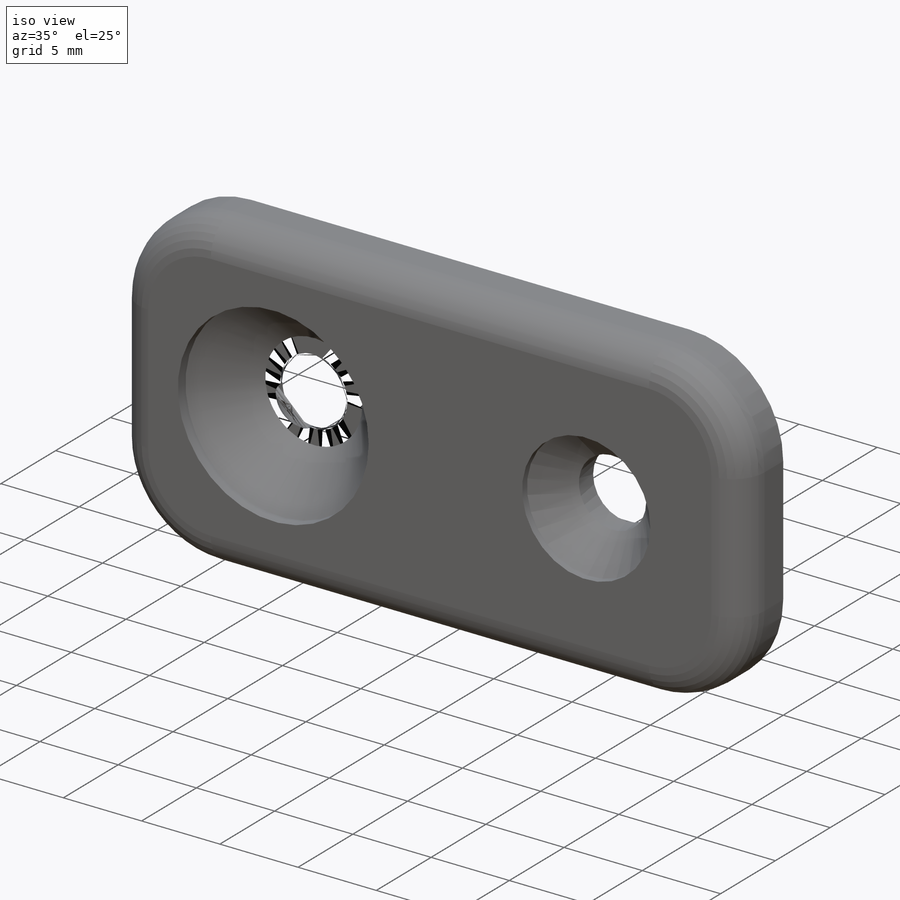
[diagram: iso view]
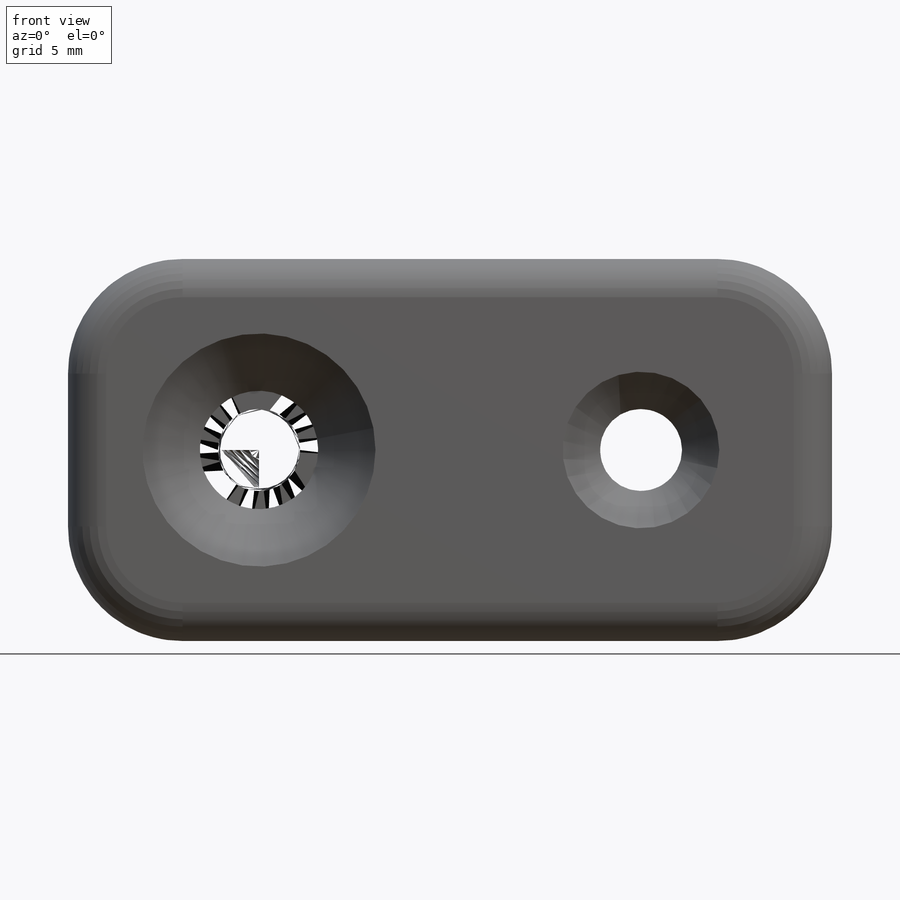
[diagram: front view]
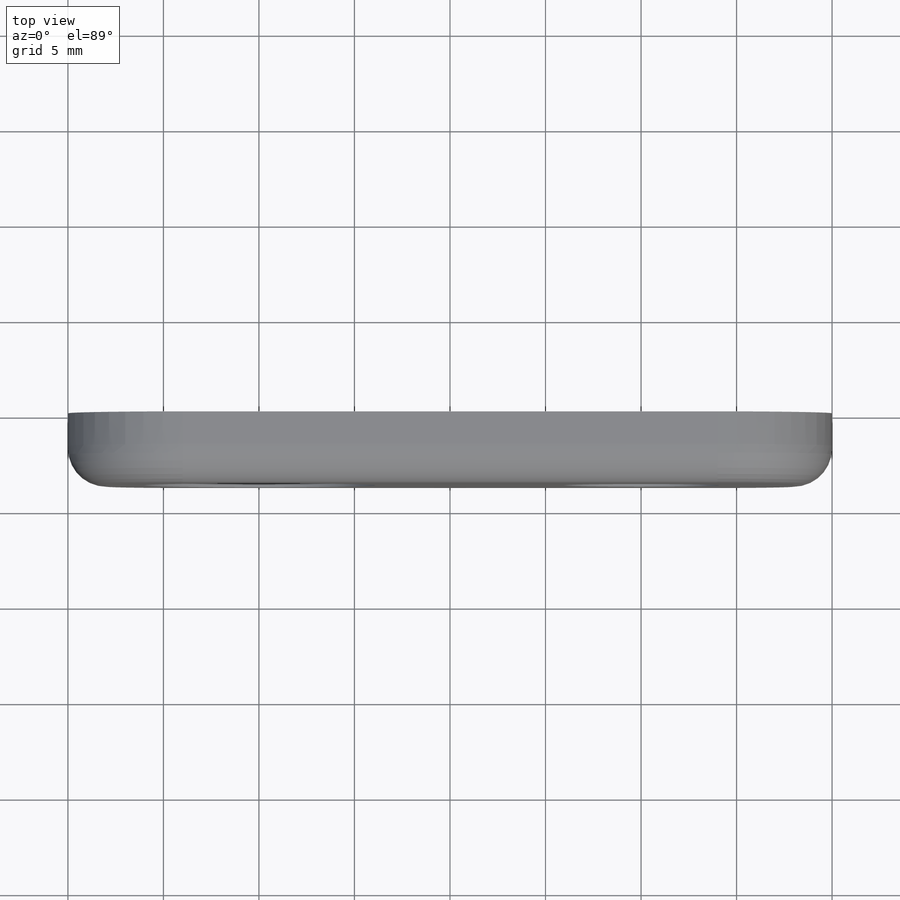
[diagram: top view]
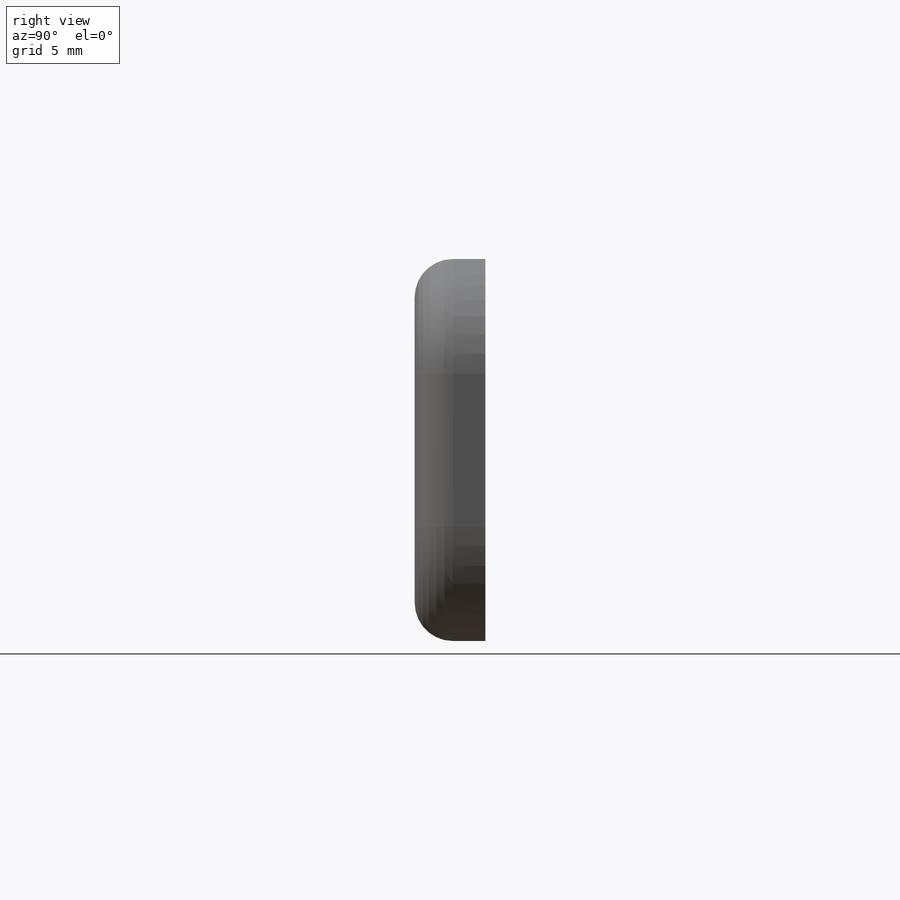
[diagram: right view]
SOLIDWORKS PART (.sldprt)
format: sldprt  version: not decoded by parser v0  size: 278,016 bytes
history: native  units: mm
features: sketch x3, cut_extrude x2, chamfer x2, fillet x2, material x1, extrude x1 (+13 scaffold rows collapsed)
feature tree (24):
  scaffold x13  (default folders/planes/origin — collapsed)
  material  "Custom Plastic"
  sketch  "Sketch1"  dims[c1.D1=6.2mm c1.D4=4.3mm c1.D5=4.2mm c1.D2=10.0mm c1.D3=20.0mm c2.D5=20.0mm c2.D6=40.0mm]
  extrude  "Boss-Extrude1"  Depth=3.7mm
  sketch  "Sketch2"  dims[D1=12.2mm]
  cut_extrude  "Cut-Extrude1"  Depth=0.7mm
  chamfer  "Chamfer1"  Distance=3mm Angle=45deg
  sketch  "Sketch3"  dims[D1=8.2mm]
  cut_extrude  "Cut-Extrude2"  Depth=0.4mm
  chamfer  "Chamfer2"  Distance=2mm Angle=45deg
  fillet  "Fillet1"  Radius=6mm
  fillet  "Fillet2"  Radius=2mm
decode coverage: 10 of 10 modeling features carry decoded parameters
note: suppression state not decoded; provenance and decode notes live in map.json
